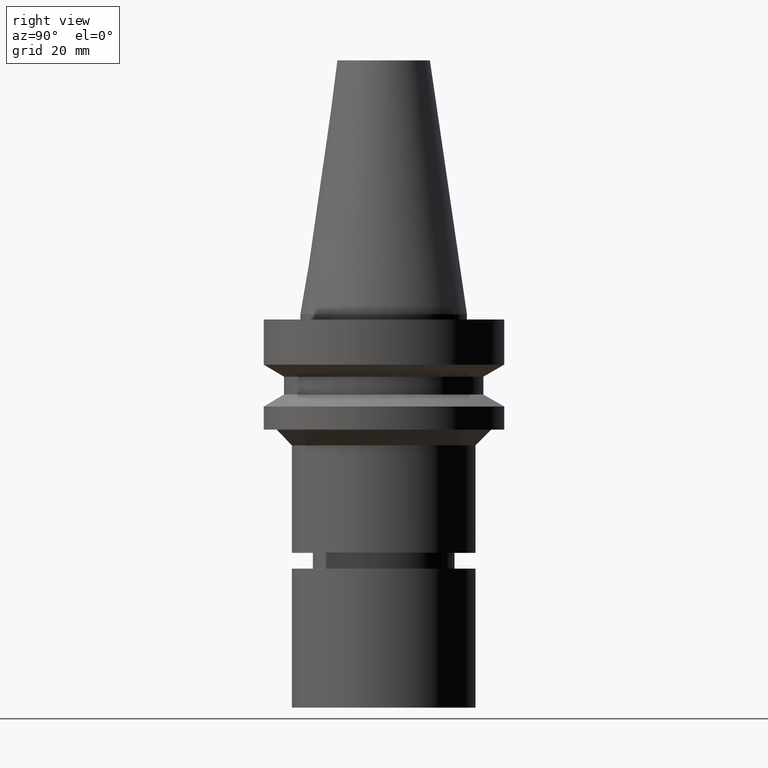
[diagram: clean part render]
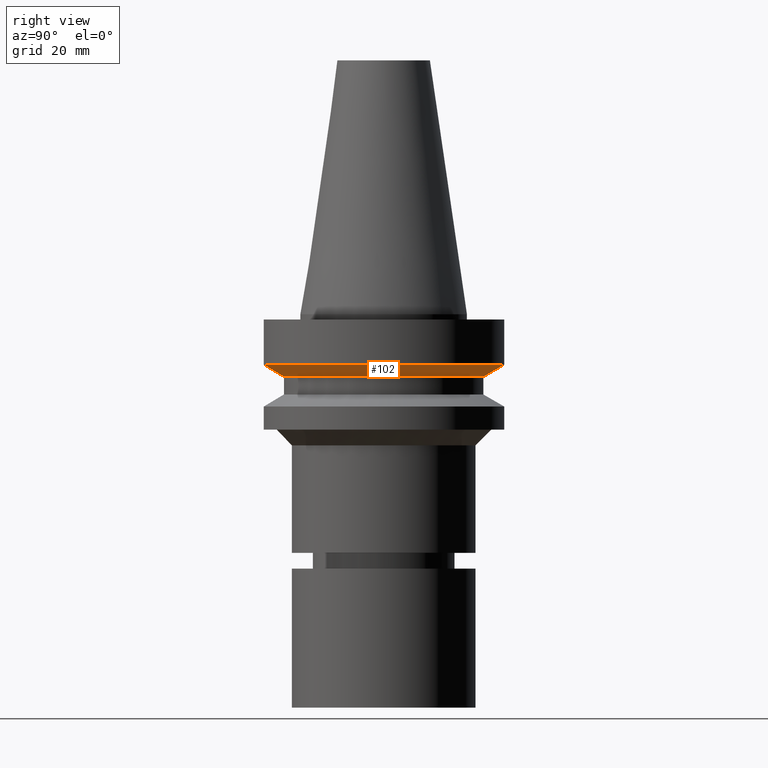
[diagram: same view with one face highlighted and labeled with its STEP entity id]
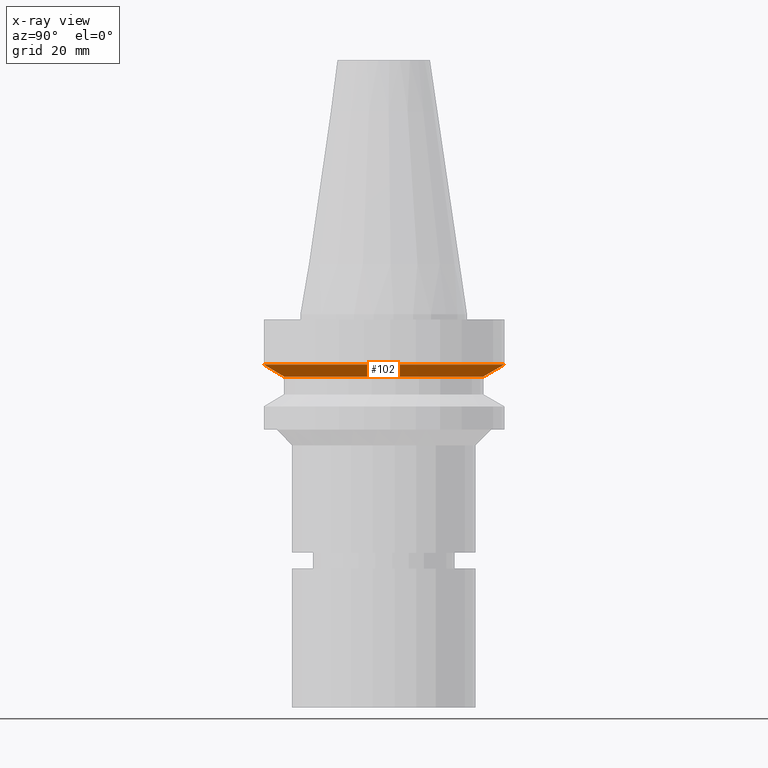
[diagram: x-ray of the same camera — body ghosted, the highlighted face saturated]
A machine part, right view. The second image highlights one B-rep face of the part: STEP entity #102.
The next image is the same camera in x-ray: the body ghosted, the highlighted face saturated — about 0% of this face is hidden behind the body in this view.
In plain terms, the highlighted conical surface has half-angle 60 deg.
Its self-contained STEP definition (entity closure, byte-faithful):
#75=EDGE_CURVE('Unnamed[1]',#201,#201,#202,.T.);
#102=ADVANCED_FACE('Unnamed[1]',(#242,#243),#244,.T.);
#125=EDGE_CURVE('Unnamed[1]',#280,#280,#281,.T.);
#201=VERTEX_POINT('',#377);
#202=CIRCLE('',#378,19.0);
#242=FACE_BOUND('',#429,.T.);
#243=FACE_BOUND('',#430,.T.);
#244=CONICAL_SURFACE('',#431,21.0,1.04719755058881);
#280=VERTEX_POINT('',#476);
#281=CIRCLE('',#477,23.0);
#377=CARTESIAN_POINT('',(7.29240495619202E-016,19.0,-11.90940108));
#378=AXIS2_PLACEMENT_3D('',#580,#581,#582);
#429=EDGE_LOOP('',(#625));
#430=EDGE_LOOP('',(#626));
#431=AXIS2_PLACEMENT_3D('',#627,#628,#629);
#476=CARTESIAN_POINT('',(5.87830463590729E-016,23.0,-9.59999999999999));
#477=AXIS2_PLACEMENT_3D('',#669,#670,#671);
#580=CARTESIAN_POINT('',(7.29240495619202E-016,1.4584809912384E-015,-11.90940108));
#581=DIRECTION('',(6.12323399573677E-017,1.22464679914735E-016,-1.0));
#582=DIRECTION('',(-1.23259516440783E-032,1.0,1.22464679914735E-016));
#625=ORIENTED_EDGE('',*,*,#75,.F.);
#626=ORIENTED_EDGE('',*,*,#125,.T.);
#627=CARTESIAN_POINT('',(6.58535479604966E-016,1.31707095920993E-015,-10.75470054));
#628=DIRECTION('',(-6.12323399573677E-017,-1.22464679914735E-016,1.0));
#629=DIRECTION('',(-1.23259516440783E-032,1.0,1.22464679914735E-016));
#669=CARTESIAN_POINT('',(5.87830463590729E-016,1.17566092718146E-015,-9.59999999999999));
#670=DIRECTION('',(6.12323399573677E-017,1.22464679914735E-016,-1.0));
#671=DIRECTION('',(-1.23259516440783E-032,1.0,1.22464679914735E-016));